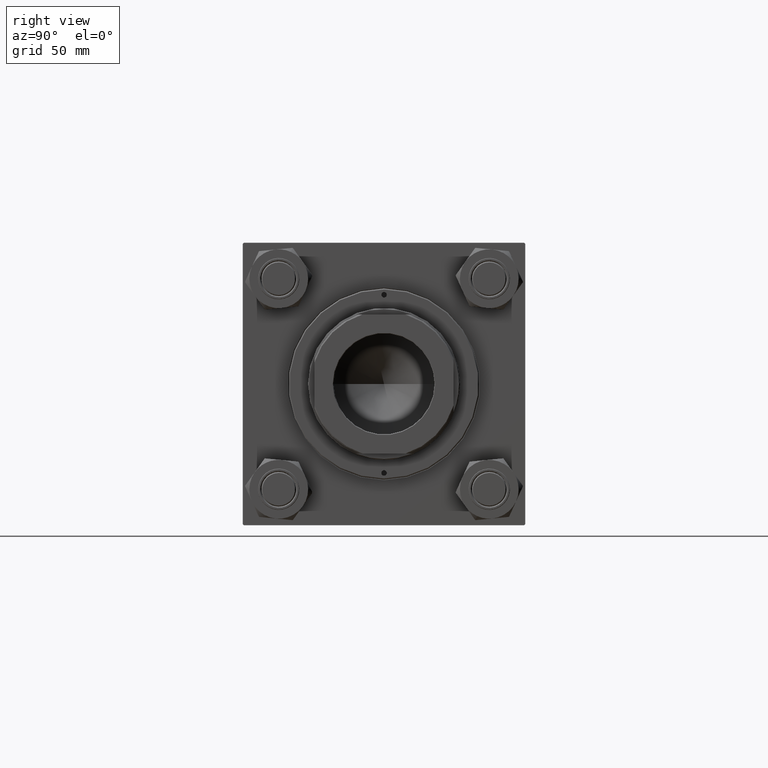
[diagram: clean part render]
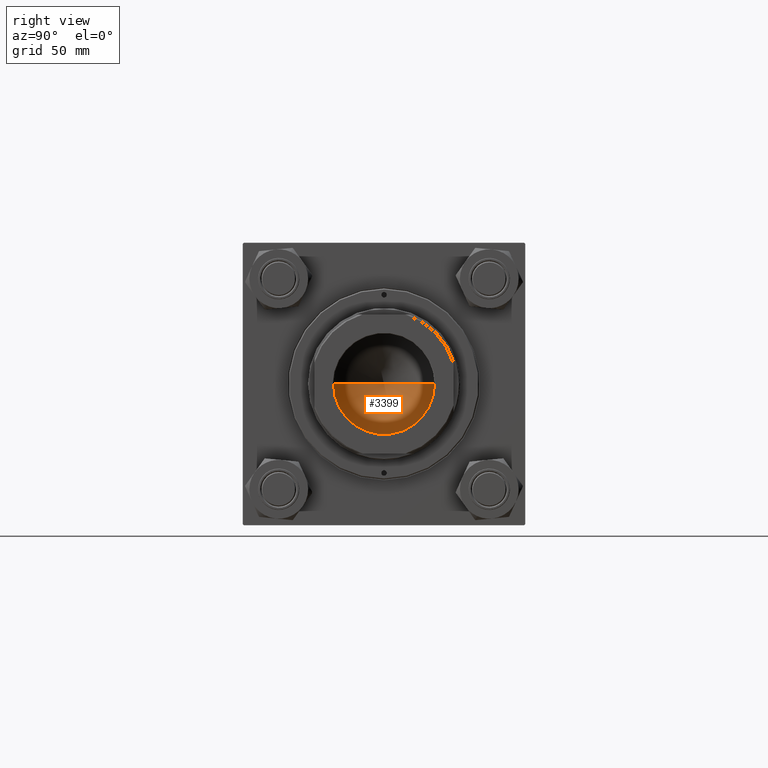
[diagram: same view with one face highlighted and labeled with its STEP entity id]
A machine part, right view. The second image highlights one B-rep face of the part: STEP entity #3399.
In plain terms, the highlighted conical surface has half-angle 59 deg.
Its self-contained STEP definition (entity closure, byte-faithful):
#422 = CARTESIAN_POINT ( 'NONE',  ( -23.24999999999998579, 2.847303808017594561E-15, 109.9999999999999858 ) ) ;
#2519 = VECTOR ( 'NONE', #12167, 1000.000000000000000 ) ;
#3399 = ADVANCED_FACE ( 'NONE', ( #30956 ), #42104, .F. ) ;
#6411 = VERTEX_POINT ( 'NONE', #10984 ) ;
#7174 = VERTEX_POINT ( 'NONE', #16242 ) ;
#7426 = CARTESIAN_POINT ( 'NONE',  ( 0.000000000000000000, 0.000000000000000000, 109.9999999999999858 ) ) ;
#10984 = CARTESIAN_POINT ( 'NONE',  ( -1.584115414415908206E-14, 0.000000000000000000, 96.02999060760919292 ) ) ;
#12167 = DIRECTION ( 'NONE',  ( -0.8571673007021117785, 1.049727191138617956E-16, 0.5150380749100550437 ) ) ;
#13521 = CARTESIAN_POINT ( 'NONE',  ( 23.24999999999998579, 0.000000000000000000, 109.9999999999999858 ) ) ;
#16242 = CARTESIAN_POINT ( 'NONE',  ( -23.24999999999998579, 2.847303808017594561E-15, 109.9999999999999858 ) ) ;
#19950 = DIRECTION ( 'NONE',  ( -0.000000000000000000, -0.000000000000000000, 1.000000000000000000 ) ) ;
#20933 = AXIS2_PLACEMENT_3D ( 'NONE', #7426, #19950, #35255 ) ;
#27404 = ORIENTED_EDGE ( 'NONE', *, *, #31439, .F. ) ;
#28320 = DIRECTION ( 'NONE',  ( 0.8571673007021117785, 0.000000000000000000, 0.5150380749100550437 ) ) ;
#30956 = FACE_OUTER_BOUND ( 'NONE', #32612, .T. ) ;
#31212 = DIRECTION ( 'NONE',  ( 1.000000000000000000, 0.000000000000000000, 0.000000000000000000 ) ) ;
#31339 = VECTOR ( 'NONE', #28320, 1000.000000000000000 ) ;
#31439 = EDGE_CURVE ( 'NONE', #6411, #7174, #43540, .T. ) ;
#32612 = EDGE_LOOP ( 'NONE', ( #27404, #47165, #50203 ) ) ;
#33102 = AXIS2_PLACEMENT_3D ( 'NONE', #34792, #38617, #31212 ) ;
#34792 = CARTESIAN_POINT ( 'NONE',  ( 0.000000000000000000, 0.000000000000000000, 109.9999999999999858 ) ) ;
#35255 = DIRECTION ( 'NONE',  ( 1.000000000000000000, 0.000000000000000000, 0.000000000000000000 ) ) ;
#38391 = EDGE_CURVE ( 'NONE', #6411, #38678, #44390, .T. ) ;
#38617 = DIRECTION ( 'NONE',  ( -0.000000000000000000, -0.000000000000000000, 1.000000000000000000 ) ) ;
#38678 = VERTEX_POINT ( 'NONE', #41456 ) ;
#39648 = CIRCLE ( 'NONE', #20933, 23.24999999999998579 ) ;
#41456 = CARTESIAN_POINT ( 'NONE',  ( 23.24999999999998579, 0.000000000000000000, 109.9999999999999858 ) ) ;
#42104 = CONICAL_SURFACE ( 'NONE', #33102, 23.24999999999998579, 1.029744258676653423 ) ;
#43540 = LINE ( 'NONE', #422, #2519 ) ;
#44390 = LINE ( 'NONE', #13521, #31339 ) ;
#47165 = ORIENTED_EDGE ( 'NONE', *, *, #38391, .T. ) ;
#47508 = EDGE_CURVE ( 'NONE', #38678, #7174, #39648, .T. ) ;
#50203 = ORIENTED_EDGE ( 'NONE', *, *, #47508, .T. ) ;